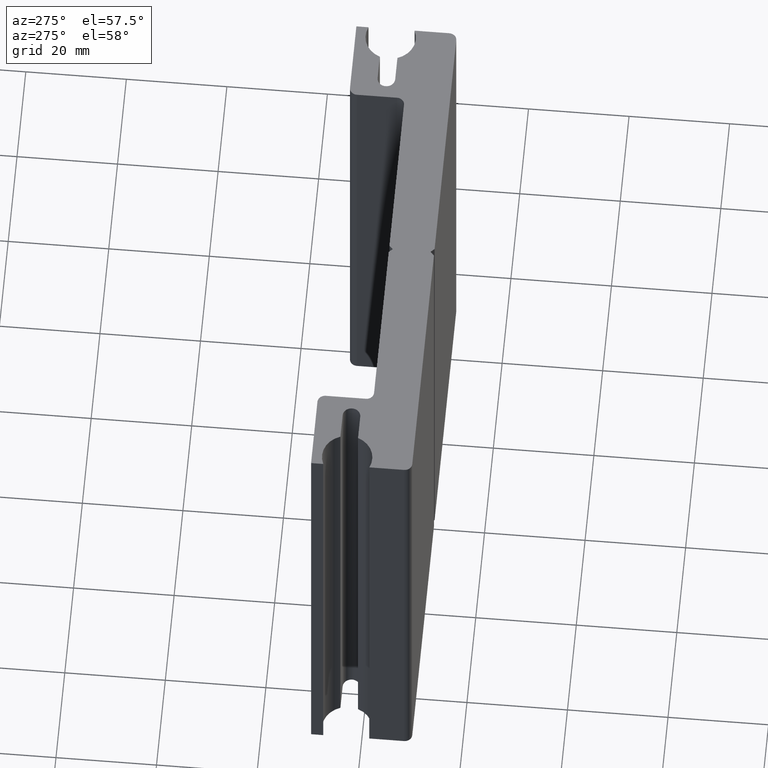
[diagram: clean part render]
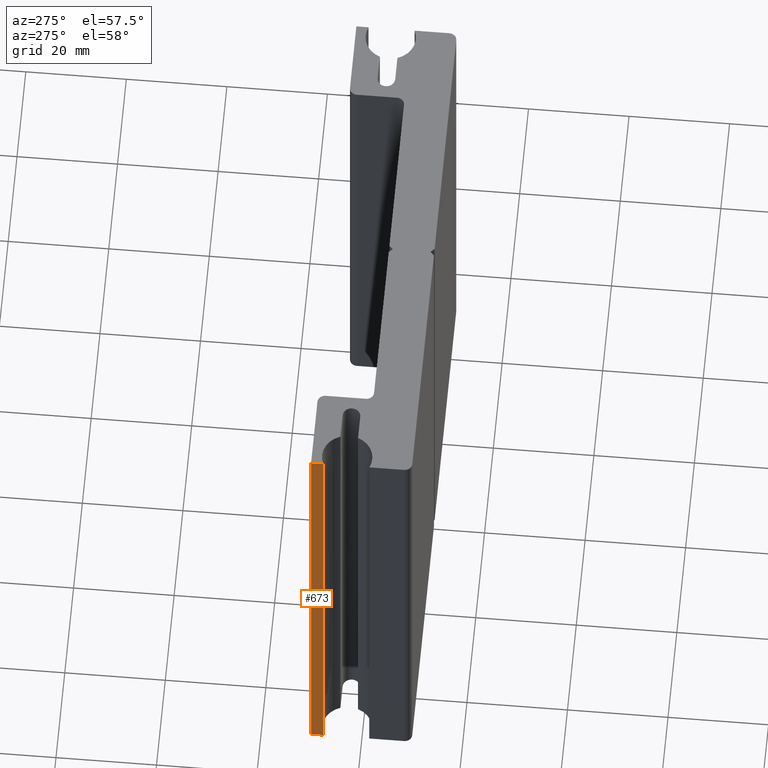
[diagram: same view with one face highlighted and labeled with its STEP entity id]
A machine part, auxiliary view. The second image highlights one B-rep face of the part: STEP entity #673.
In plain terms, the highlighted planar face has unit normal (-1, 0, 0).
Its self-contained STEP definition (entity closure, byte-faithful):
#87=FACE_OUTER_BOUND('',#121,.T.);
#121=EDGE_LOOP('',(#611,#612,#613,#614));
#139=LINE('',#1006,#211);
#143=LINE('',#1028,#215);
#177=LINE('',#1116,#249);
#194=LINE('',#1152,#266);
#211=VECTOR('',#808,10.);
#215=VECTOR('',#834,10.);
#249=VECTOR('',#898,10.);
#266=VECTOR('',#953,10.);
#283=VERTEX_POINT('',#1003);
#284=VERTEX_POINT('',#1005);
#291=VERTEX_POINT('',#1027);
#330=VERTEX_POINT('',#1114);
#352=EDGE_CURVE('',#284,#283,#139,.T.);
#363=EDGE_CURVE('',#284,#291,#143,.T.);
#409=EDGE_CURVE('',#330,#283,#177,.T.);
#426=EDGE_CURVE('',#291,#330,#194,.T.);
#611=ORIENTED_EDGE('',*,*,#352,.T.);
#612=ORIENTED_EDGE('',*,*,#409,.F.);
#613=ORIENTED_EDGE('',*,*,#426,.F.);
#614=ORIENTED_EDGE('',*,*,#363,.F.);
#639=PLANE('',#761);
#673=ADVANCED_FACE('',(#87),#639,.T.);
#761=AXIS2_PLACEMENT_3D('',#1151,#951,#952);
#808=DIRECTION('',(0.,0.,1.));
#834=DIRECTION('',(0.,1.,0.));
#898=DIRECTION('',(0.,-1.,0.));
#951=DIRECTION('center_axis',(-1.,0.,0.));
#952=DIRECTION('ref_axis',(0.,-1.,0.));
#953=DIRECTION('',(0.,0.,1.));
#1003=CARTESIAN_POINT('',(-51.5,7.58257569495584,100.));
#1005=CARTESIAN_POINT('',(-51.5,7.58257569495584,0.));
#1006=CARTESIAN_POINT('',(-51.5,7.58257569495584,100.));
#1027=CARTESIAN_POINT('',(-51.5,10.,0.));
#1028=CARTESIAN_POINT('',(-51.5,-10.,0.));
#1114=CARTESIAN_POINT('',(-51.5,10.,100.));
#1116=CARTESIAN_POINT('',(-51.5,-10.,100.));
#1151=CARTESIAN_POINT('Origin',(-51.5,10.,0.));
#1152=CARTESIAN_POINT('',(-51.5,10.,0.));